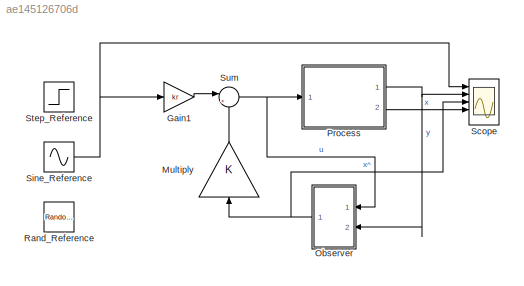
MODEL slx_ae145126706d
KIND model
CONFIG AbsTol = auto
CONFIG EnableMultiTasking = off
CONFIG FixedStep = auto
CONFIG MaxStep = auto
CONFIG MinStep = auto
CONFIG RelTol = 1e-3
CONFIG SampleTimeConstraint = Unconstrained
CONFIG SolverName = VariableStepAuto
CONFIG StartTime = 0.0
CONFIG StopTime = 10
WORKSPACE source: MATLAB code (in-file)
WORKSPACE a = 0.5
WORKSPACE b = 1
WORKSPACE code: A = [0, 1; 0, 0];
WORKSPACE code: B = [a/b; 1];
WORKSPACE C = [1, 0]
WORKSPACE D = 0
WORKSPACE P = [-5, -5]
WORKSPACE kr = 23
WORKSPACE K = acker(A, B, P)
WORKSPACE code: L = [100; 1000]; % from hit and trial
BLOCK [Gain] Gain1
  Gain = kr
BLOCK [Gain] Multiply
  Gain = K
  Multiplication = Matrix(K*u)
  NameLocation = right
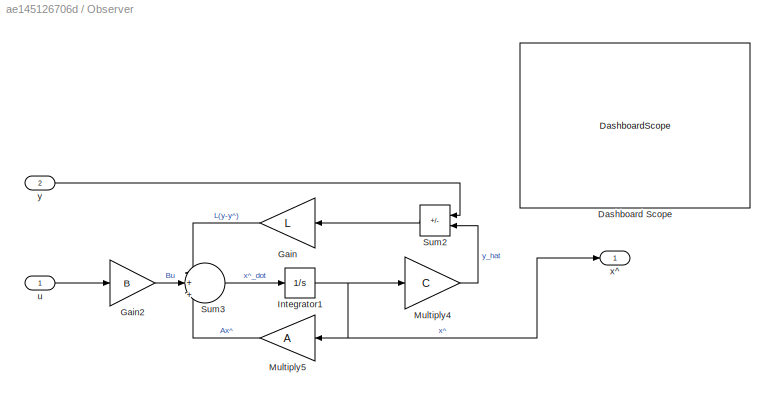
BLOCK [SubSystem] Observer
  Ports = [2, 1]
  RequestExecContextInheritance = off
BLOCK [DashboardScope] Observer/Dashboard Scope
BLOCK [Gain] Observer/Gain
  Gain = L
  Multiplication = Matrix(K*u)
  NameLocation = top
BLOCK [Gain] Observer/Gain2
  Gain = B
  Multiplication = Matrix(K*u)
BLOCK [Integrator] Observer/Integrator1
  Ports = [1, 1]
BLOCK [Gain] Observer/Multiply4
  Gain = C
  Multiplication = Matrix(K*u)
BLOCK [Gain] Observer/Multiply5
  Gain = A
  Multiplication = Matrix(K*u)
  NameLocation = top
BLOCK [Sum] Observer/Sum2
  IconShape = rectangular
  Inputs = +-
  NameLocation = top
  Ports = [2, 1]
BLOCK [Sum] Observer/Sum3
  Inputs = |+|+|+|
  Ports = [3, 1]
BLOCK [Inport] Observer/u
BLOCK [Outport] Observer/x^
BLOCK [Inport] Observer/y
  Port = 2
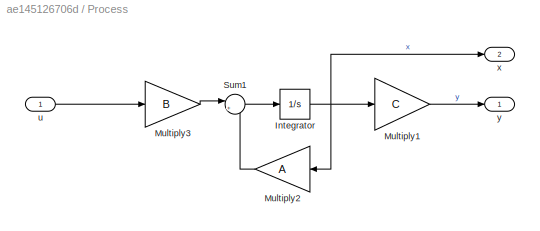
BLOCK [SubSystem] Process
  Ports = [1, 2]
  RequestExecContextInheritance = off
BLOCK [Integrator] Process/Integrator
  Ports = [1, 1]
BLOCK [Gain] Process/Multiply1
  Gain = C
  Multiplication = Matrix(K*u)
BLOCK [Gain] Process/Multiply2
  Gain = A
  Multiplication = Matrix(K*u)
  NameLocation = top
BLOCK [Gain] Process/Multiply3
  Gain = B
BLOCK [Sum] Process/Sum1
  Inputs = |++
  Ports = [2, 1]
BLOCK [Inport] Process/u
BLOCK [Outport] Process/x
  Port = 2
BLOCK [Outport] Process/y
BLOCK [RandomNumber] Rand_Reference
  SampleTime = 1
  Variance = 4
BLOCK [Scope] Scope
  Floating = off
  NumInputPorts = 5
  Ports = [5]
  ScopeSpecificationString = Simulink.scopes.TimeScopeBlockCfg('CurrentConfiguration', extmgr.ConfigurationSet(extmgr.Configuration('Core','General UI',true,'FigureColor',[1 1 1]),extmgr.Configuration('Core','Source UI',true),extmgr.Configuration('Sources','WiredSimulink',true),extmgr.Configuration('Visuals','Time Domain',true,'SerializedDisplays',{struct('MinYLimReal','-3.97848','MaxYLimReal','4.06401','YLabelReal','','MinYL...<+1922ch>
BLOCK [Sin] Sine_Reference
  Amplitude = 2
  Frequency = 2
  Phase = 1
  Ports = [0, 1]
  SampleTime = 0
BLOCK [Step] Step_Reference
  After = 2
  SampleTime = 0
BLOCK [Sum] Sum
  Inputs = |+-
  Ports = [2, 1]
LINE Gain1:1 -> Sum:1
LINE Multiply:1 -> Sum:2
LINE Observer/Gain2:1 -> Observer/Sum3:2
LINE Observer/Gain:1 -> Observer/Sum3:1
NET Observer/Integrator1:1 -> Observer/Multiply4:1, Observer/Multiply5:1, Observer/x^:1
LINE Observer/Multiply4:1 -> Observer/Sum2:2
LINE Observer/Multiply5:1 -> Observer/Sum3:3
LINE Observer/Sum2:1 -> Observer/Gain:1
LINE Observer/Sum3:1 -> Observer/Integrator1:1
LINE Observer/u:1 -> Observer/Gain2:1
LINE Observer/y:1 -> Observer/Sum2:1
NET Observer:1 -> Multiply:1, Scope:3
NET Process/Integrator:1 -> Process/Multiply1:1, Process/Multiply2:1, Process/x:1
LINE Process/Multiply1:1 -> Process/y:1
LINE Process/Multiply2:1 -> Process/Sum1:2
LINE Process/Multiply3:1 -> Process/Sum1:1
LINE Process/Sum1:1 -> Process/Integrator:1
LINE Process/u:1 -> Process/Multiply3:1
NET Process:1 -> Observer:2, Scope:2
LINE Process:2 -> Scope:4
NET Sine_Reference:1 -> Gain1:1, Scope:1
NET Sum:1 -> Observer:1, Process:1
note: NET lines group one-source signal fan-out (src -> all destinations, sorted); 1:1 wires keep LINE
